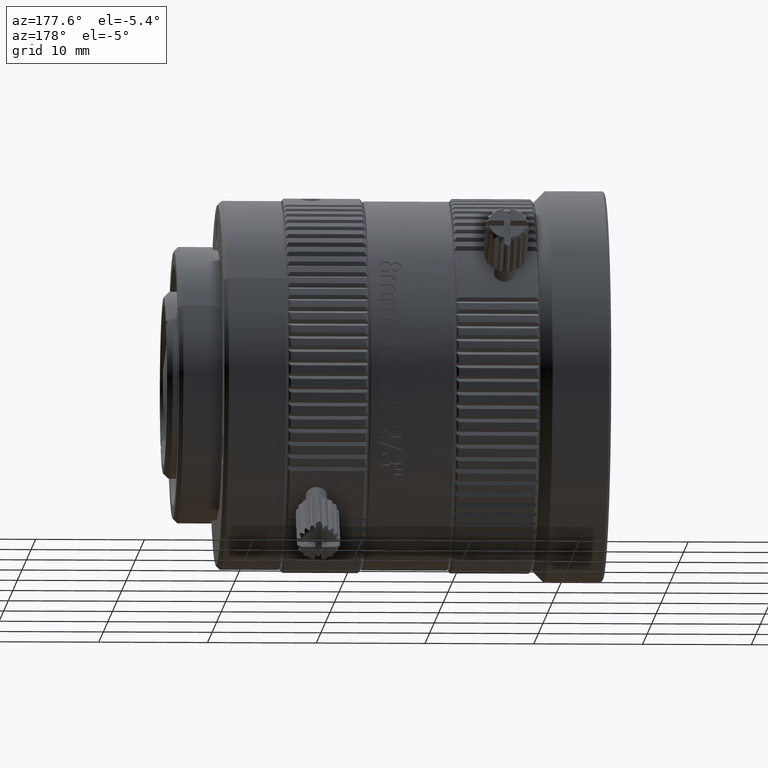
[diagram: clean part render]
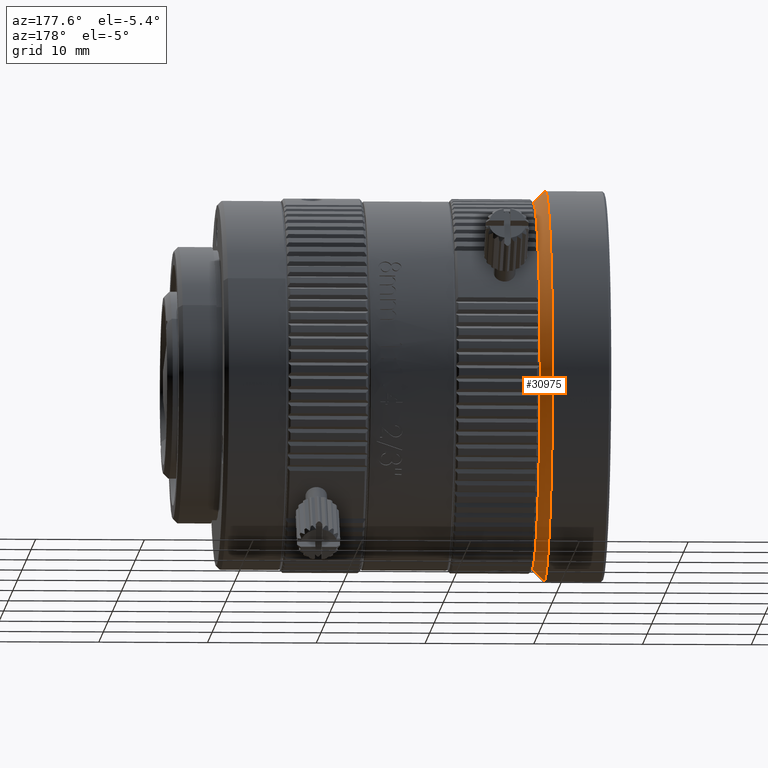
[diagram: same view with one face highlighted and labeled with its STEP entity id]
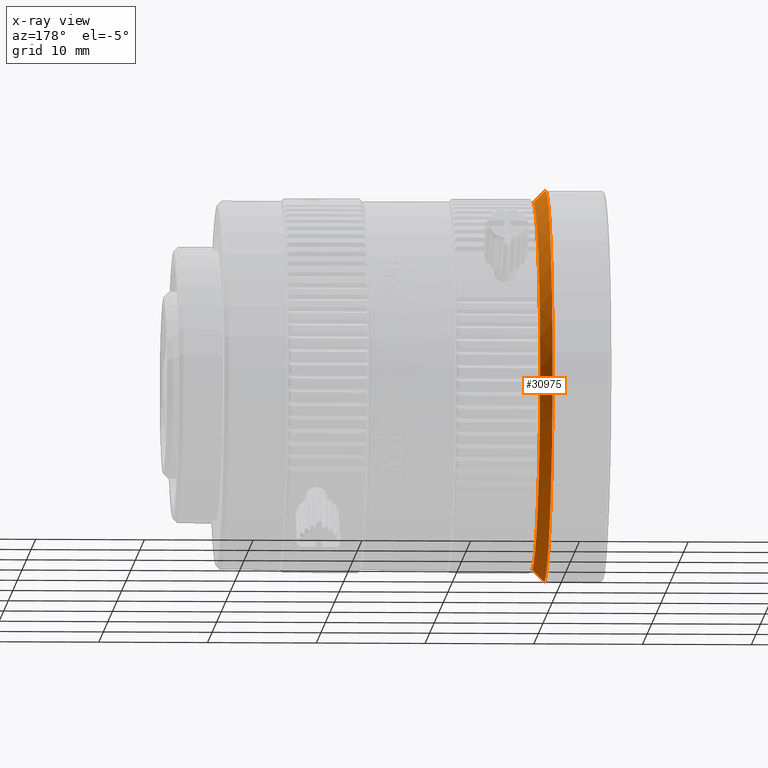
[diagram: x-ray of the same camera — body ghosted, the highlighted face saturated]
A machine part, auxiliary view. The second image highlights one B-rep face of the part: STEP entity #30975.
The next image is the same camera in x-ray: the body ghosted, the highlighted face saturated — about 0% of this face is hidden behind the body in this view.
In plain terms, the highlighted conical surface has half-angle 45 deg.
Its self-contained STEP definition (entity closure, byte-faithful):
#27 = EDGE_CURVE ( 'NONE', #33264, #33904, #67394, .T. ) ;
#513 = DIRECTION ( 'NONE',  ( 0.000000000000000000, 0.000000000000000000, 1.000000000000000000 ) ) ;
#4556 = EDGE_LOOP ( 'NONE', ( #43194, #58936, #46338, #9729 ) ) ;
#4642 = CARTESIAN_POINT ( 'NONE',  ( -8.879999999999999005, 1.482901162574388286E-16, 18.00000000000001066 ) ) ;
#5995 = CARTESIAN_POINT ( 'NONE',  ( -7.780000000000002025, 1.482901162574388286E-16, 16.90000000000000568 ) ) ;
#8502 = CARTESIAN_POINT ( 'NONE',  ( -7.780000000000002025, 2.285298780769570990E-15, -16.90000000000000568 ) ) ;
#9729 = ORIENTED_EDGE ( 'NONE', *, *, #68479, .F. ) ;
#12831 = DIRECTION ( 'NONE',  ( 0.000000000000000000, 0.000000000000000000, 1.000000000000000000 ) ) ;
#13213 = CARTESIAN_POINT ( 'NONE',  ( -8.879999999999999005, 1.482901162574388286E-16, 8.298371359543248882E-16 ) ) ;
#14081 = CARTESIAN_POINT ( 'NONE',  ( -8.879999999999999005, 2.352654354722676031E-15, -18.00000000000001066 ) ) ;
#18607 = DIRECTION ( 'NONE',  ( -1.000000000000000000, 0.000000000000000000, 0.000000000000000000 ) ) ;
#19709 = FACE_OUTER_BOUND ( 'NONE', #4556, .T. ) ;
#23445 = DIRECTION ( 'NONE',  ( -0.7071067811865452413, 0.000000000000000000, 0.7071067811865497932 ) ) ;
#24879 = CARTESIAN_POINT ( 'NONE',  ( -7.780000000000002025, 1.482901162574388286E-16, 8.298371359543248882E-16 ) ) ;
#28359 = VERTEX_POINT ( 'NONE', #75596 ) ;
#29418 = CONICAL_SURFACE ( 'NONE', #51956, 18.00000000000001066, 0.7853981633974514986 ) ;
#30975 = ADVANCED_FACE ( 'NONE', ( #19709 ), #29418, .T. ) ;
#33264 = VERTEX_POINT ( 'NONE', #8502 ) ;
#33786 = AXIS2_PLACEMENT_3D ( 'NONE', #24879, #18607, #66818 ) ;
#33904 = VERTEX_POINT ( 'NONE', #73786 ) ;
#37427 = CIRCLE ( 'NONE', #59969, 18.00000000000001066 ) ;
#37593 = DIRECTION ( 'NONE',  ( -0.7071067811865452413, 8.659560562354961208E-17, -0.7071067811865497932 ) ) ;
#39059 = VECTOR ( 'NONE', #37593, 1000.000000000000000 ) ;
#41453 = VERTEX_POINT ( 'NONE', #5995 ) ;
#42842 = DIRECTION ( 'NONE',  ( -1.000000000000000000, 0.000000000000000000, 0.000000000000000000 ) ) ;
#43194 = ORIENTED_EDGE ( 'NONE', *, *, #60962, .T. ) ;
#43502 = EDGE_CURVE ( 'NONE', #28359, #33904, #37427, .T. ) ;
#46338 = ORIENTED_EDGE ( 'NONE', *, *, #43502, .F. ) ;
#51956 = AXIS2_PLACEMENT_3D ( 'NONE', #67516, #42842, #513 ) ;
#55137 = DIRECTION ( 'NONE',  ( -1.000000000000000000, -0.000000000000000000, -0.000000000000000000 ) ) ;
#58936 = ORIENTED_EDGE ( 'NONE', *, *, #27, .T. ) ;
#59969 = AXIS2_PLACEMENT_3D ( 'NONE', #13213, #55137, #12831 ) ;
#60962 = EDGE_CURVE ( 'NONE', #41453, #33264, #67605, .T. ) ;
#66759 = VECTOR ( 'NONE', #23445, 1000.000000000000000 ) ;
#66818 = DIRECTION ( 'NONE',  ( 0.000000000000000000, 0.000000000000000000, 1.000000000000000000 ) ) ;
#67394 = LINE ( 'NONE', #14081, #39059 ) ;
#67516 = CARTESIAN_POINT ( 'NONE',  ( -8.879999999999999005, 1.482901162574388286E-16, 8.298371359543248882E-16 ) ) ;
#67605 = CIRCLE ( 'NONE', #33786, 16.90000000000000568 ) ;
#68479 = EDGE_CURVE ( 'NONE', #41453, #28359, #77159, .T. ) ;
#73786 = CARTESIAN_POINT ( 'NONE',  ( -8.879999999999999005, 2.352654354722676031E-15, -18.00000000000001066 ) ) ;
#75596 = CARTESIAN_POINT ( 'NONE',  ( -8.879999999999999005, 1.482901162574388286E-16, 18.00000000000001066 ) ) ;
#77159 = LINE ( 'NONE', #4642, #66759 ) ;